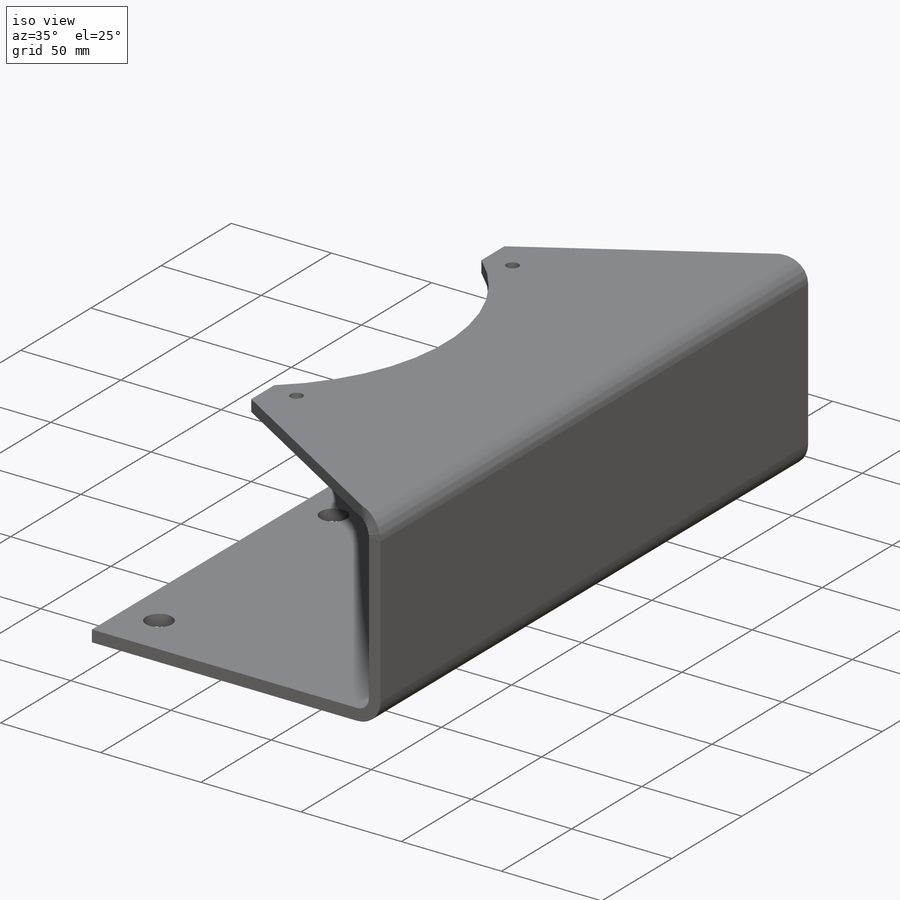
[diagram: iso view]
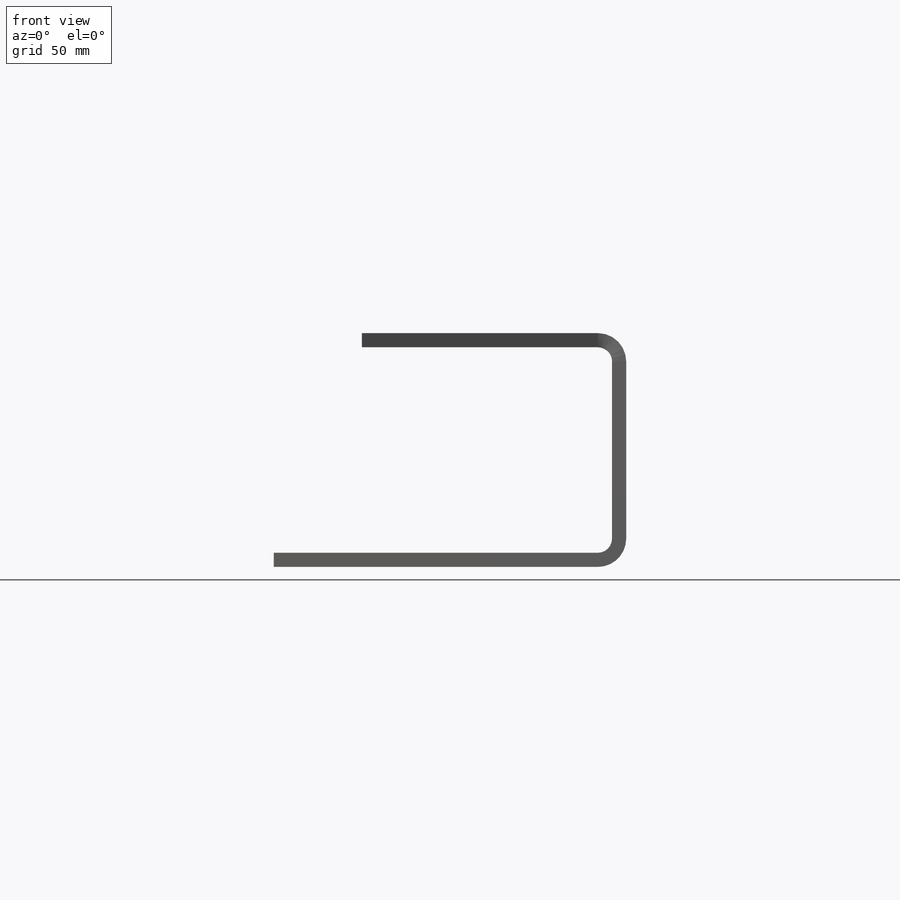
[diagram: front view]
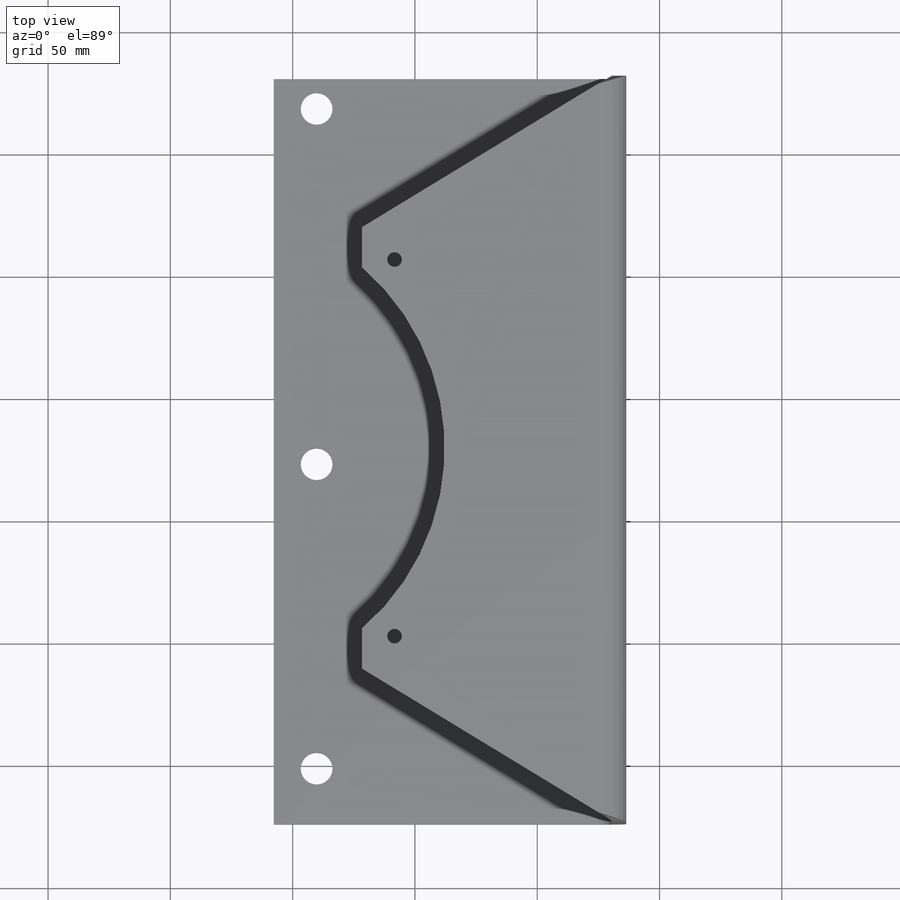
[diagram: top view]
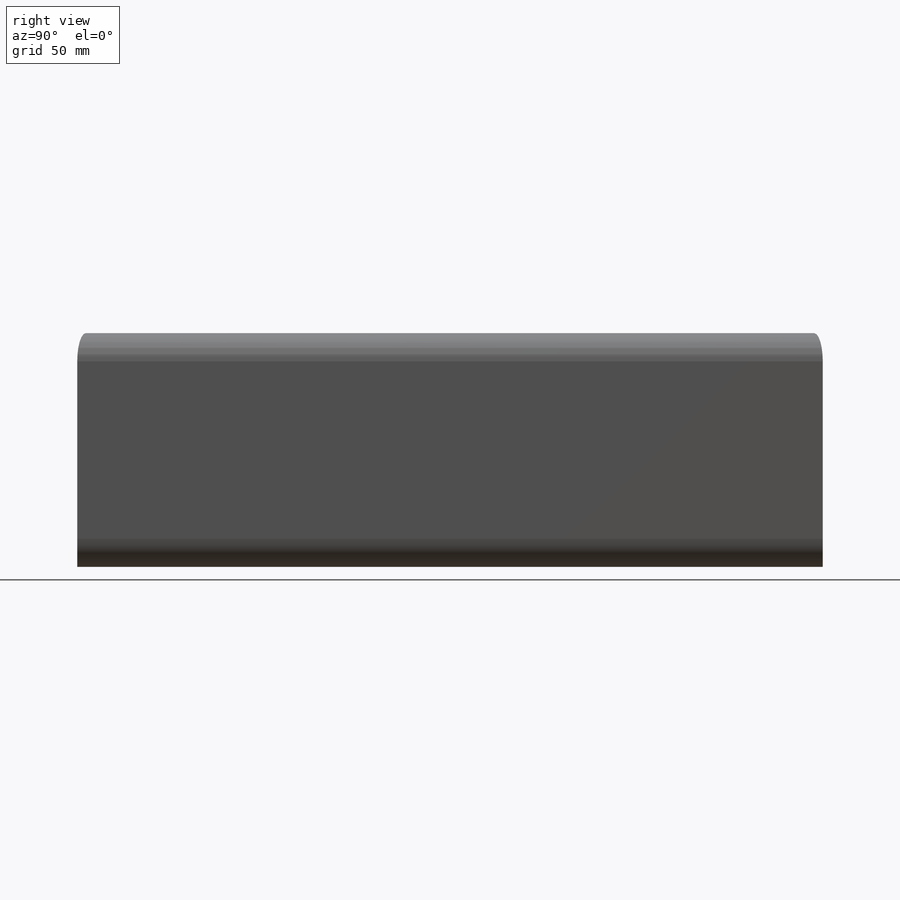
[diagram: right view]
SOLIDWORKS PART (.sldprt)
format: sldprt  version: not decoded by parser v0  size: 259,584 bytes
history: native  units: mm
features: sketch x7, extrude x3, cut_extrude x2, material x1, sheet_metal_op x1 + 2 further entries (+11 scaffold rows collapsed)
feature tree (27):
  scaffold x11  (default folders/planes/origin — collapsed)
  material  "Material <not specified>"
  sketch  "Sketch1"  dims[D1=~17.506482mm D2=50.0mm]
  extrude  "Boss-Extrude1"  Depth=5.971mm
  sketch  "Sketch2"  dims[D1=5.971mm]
  extrude  "Boss-Extrude2"  [1 undecoded]
  sketch  "Sketch5"  dims[D1=27.0mm D2=~191.962764mm]
  extrude  "Boss-Extrude4"  Depth=5.971mm
  sketch  "Sketch6"  dims[D1=195.0mm D2=6.0mm]
  cut_extrude  "Cut-Extrude2"  [1 undecoded]
  sketch  "Sketch7"  dims[D1=13.0mm]
  cut_extrude  "Cut-Extrude3"  [1 undecoded]
  sheet_metal_op  "Sheet-Metal3"  SharpBend6=0
  "Flat-Pattern3"
  sketch  "Bend-Lines3"
  sketch  "Bounding-Box3"
  "Flatten-<SharpBend6>1"
decode coverage: 8 of 13 modeling features carry decoded parameters; 2 rows unclassified (native names shown)
note: ~ marks probable driven/reference dimensions
note: 3 parameter values undecoded
summary: no parameter record found for 3 features
note: suppression state not decoded; provenance and decode notes live in map.json
